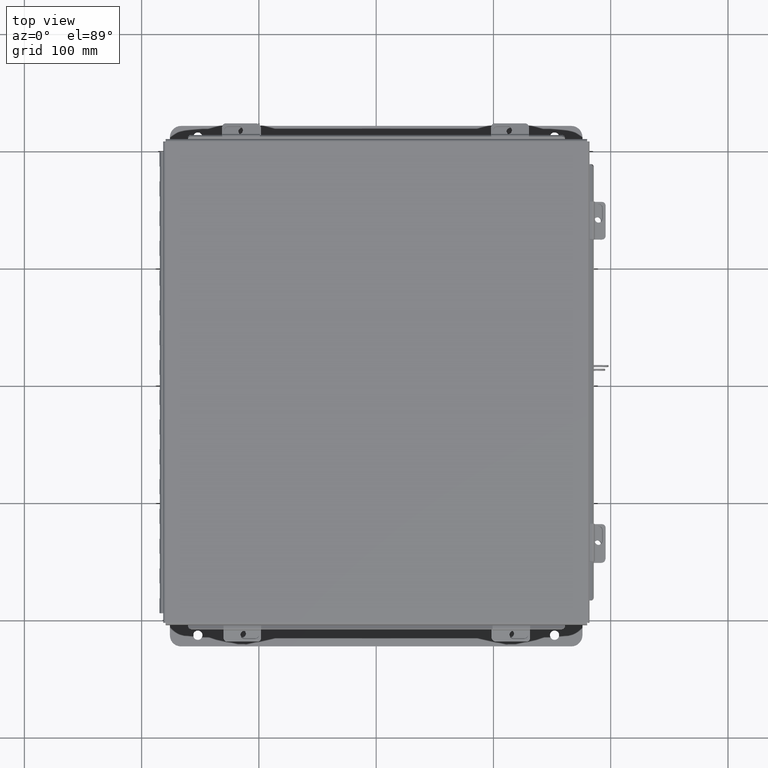
[diagram: clean part render]
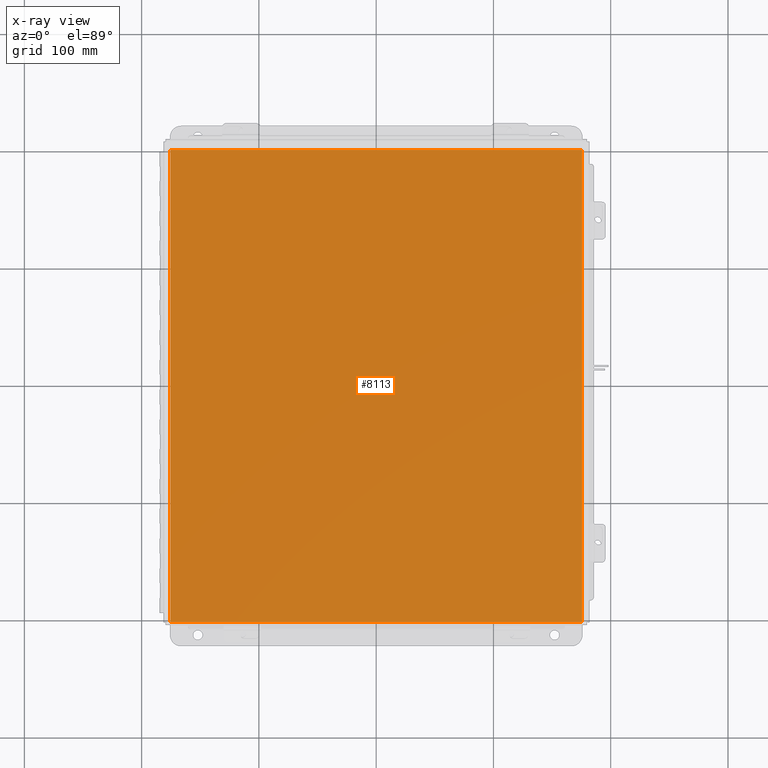
[diagram: x-ray — body ghosted, one internal face saturated and labeled with its STEP entity id]
A machine part, top view, then the same camera in x-ray: the body is ghosted and one INTERNAL B-rep face — a face not visible from any outside direction — is saturated and labeled: STEP entity #8113.
In plain terms, the highlighted planar face has unit normal (0, 0, -1).
Its self-contained STEP definition (entity closure, byte-faithful):
#188 = LINE ( 'NONE', #12303, #7922 ) ;
#235 = DIRECTION ( 'NONE',  ( -0.0000000000000000000, -1.000000000000000000, -0.0000000000000000000 ) ) ;
#595 = ORIENTED_EDGE ( 'NONE', *, *, #3550, .F. ) ;
#1015 = LINE ( 'NONE', #7839, #9255 ) ;
#1390 = CARTESIAN_POINT ( 'NONE',  ( 6.912299999999999200, 7.925300000000000000, 4.268512490100411300E-017 ) ) ;
#2023 = DIRECTION ( 'NONE',  ( -1.000000000000000000, 0.0000000000000000000, -0.0000000000000000000 ) ) ;
#2825 = VECTOR ( 'NONE', #235, 39.37007874015748100 ) ;
#3483 = AXIS2_PLACEMENT_3D ( 'NONE', #9724, #11263, #2023 ) ;
#3550 = EDGE_CURVE ( 'NONE', #12381, #5210, #1015, .T. ) ;
#3565 = FACE_OUTER_BOUND ( 'NONE', #7685, .T. ) ;
#4579 = DIRECTION ( 'NONE',  ( 1.000000000000000000, 0.0000000000000000000, 0.0000000000000000000 ) ) ;
#5210 = VERTEX_POINT ( 'NONE', #18109 ) ;
#5966 = CARTESIAN_POINT ( 'NONE',  ( -6.912299999999999200, -7.925299999999997300, 4.268512490100411300E-017 ) ) ;
#7073 = EDGE_CURVE ( 'NONE', #12381, #8958, #188, .T. ) ;
#7097 = ORIENTED_EDGE ( 'NONE', *, *, #10679, .T. ) ;
#7685 = EDGE_LOOP ( 'NONE', ( #17649, #7097, #595, #9130 ) ) ;
#7839 = CARTESIAN_POINT ( 'NONE',  ( -6.912299999999999200, -7.925299999999998200, 4.268512490100411300E-017 ) ) ;
#7922 = VECTOR ( 'NONE', #4579, 39.37007874015748100 ) ;
#8113 = ADVANCED_FACE ( 'NONE', ( #3565 ), #19082, .F. ) ;
#8900 = EDGE_CURVE ( 'NONE', #13632, #8958, #15205, .T. ) ;
#8958 = VERTEX_POINT ( 'NONE', #9633 ) ;
#9017 = DIRECTION ( 'NONE',  ( -0.0000000000000000000, 1.000000000000000000, -0.0000000000000000000 ) ) ;
#9130 = ORIENTED_EDGE ( 'NONE', *, *, #7073, .T. ) ;
#9179 = DIRECTION ( 'NONE',  ( -1.000000000000000000, -0.0000000000000000000, -0.0000000000000000000 ) ) ;
#9255 = VECTOR ( 'NONE', #9017, 39.37007874015748100 ) ;
#9633 = CARTESIAN_POINT ( 'NONE',  ( 6.912299999999999200, -7.925299999999997300, 4.268512490100411300E-017 ) ) ;
#9724 = CARTESIAN_POINT ( 'NONE',  ( 0.0000000000000000000, 0.0000000000000000000, 0.0000000000000000000 ) ) ;
#10679 = EDGE_CURVE ( 'NONE', #13632, #5210, #18556, .T. ) ;
#10715 = CARTESIAN_POINT ( 'NONE',  ( -7.000000000000000000, 7.925300000000000900, 0.0000000000000000000 ) ) ;
#10749 = VECTOR ( 'NONE', #9179, 39.37007874015748100 ) ;
#11263 = DIRECTION ( 'NONE',  ( 0.0000000000000000000, 0.0000000000000000000, -1.000000000000000000 ) ) ;
#12303 = CARTESIAN_POINT ( 'NONE',  ( -7.000000000000000000, -7.925299999999997300, 0.0000000000000000000 ) ) ;
#12381 = VERTEX_POINT ( 'NONE', #5966 ) ;
#13632 = VERTEX_POINT ( 'NONE', #1390 ) ;
#15205 = LINE ( 'NONE', #19942, #2825 ) ;
#17649 = ORIENTED_EDGE ( 'NONE', *, *, #8900, .F. ) ;
#18109 = CARTESIAN_POINT ( 'NONE',  ( -6.912299999999999200, 7.925300000000000900, 4.268512490100411300E-017 ) ) ;
#18556 = LINE ( 'NONE', #10715, #10749 ) ;
#19082 = PLANE ( 'NONE',  #3483 ) ;
#19942 = CARTESIAN_POINT ( 'NONE',  ( 6.912299999999999200, 7.925300000000001800, 4.268512490100411300E-017 ) ) ;